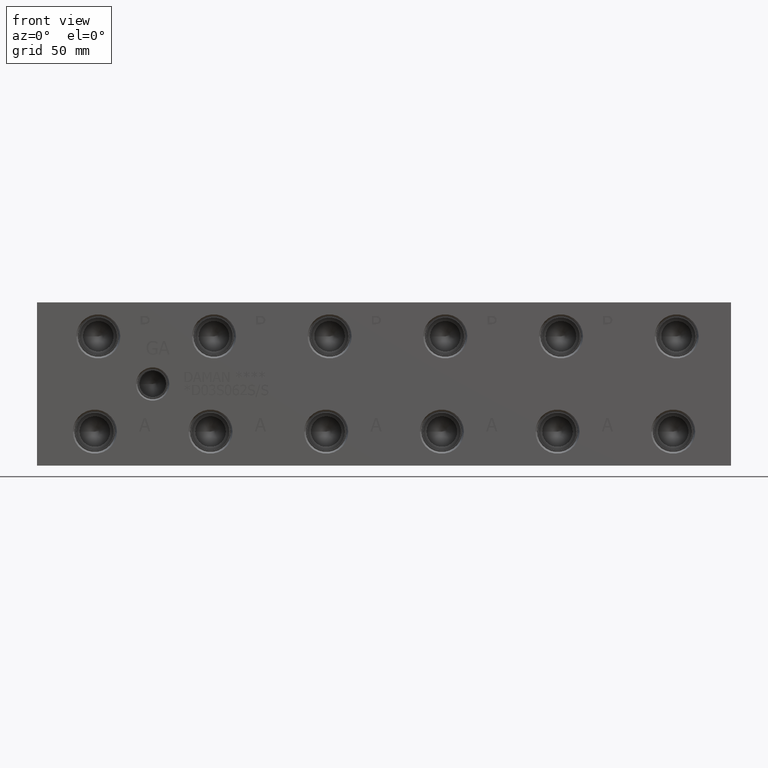
[diagram: clean part render]
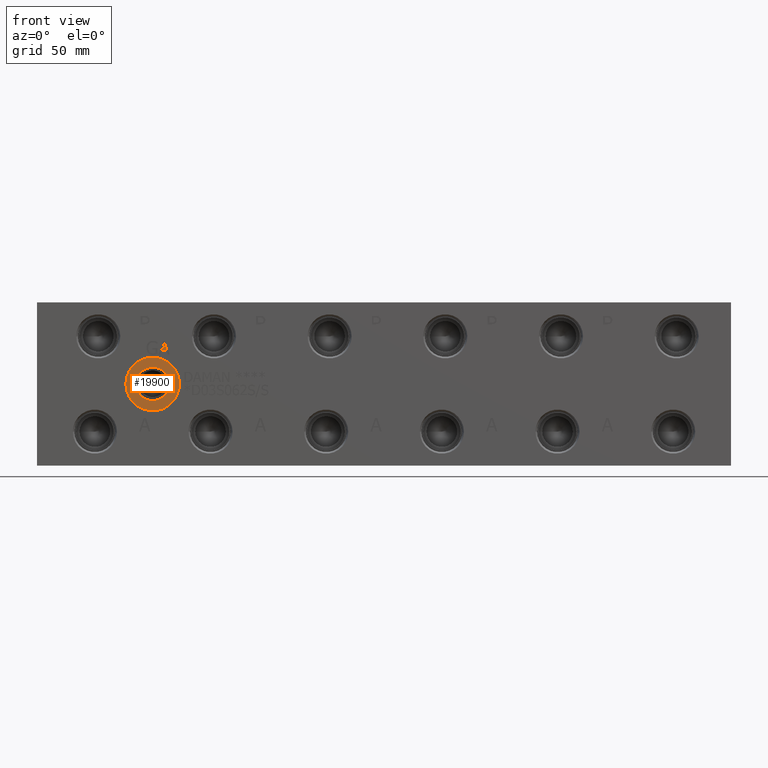
[diagram: same view with one face highlighted and labeled with its STEP entity id]
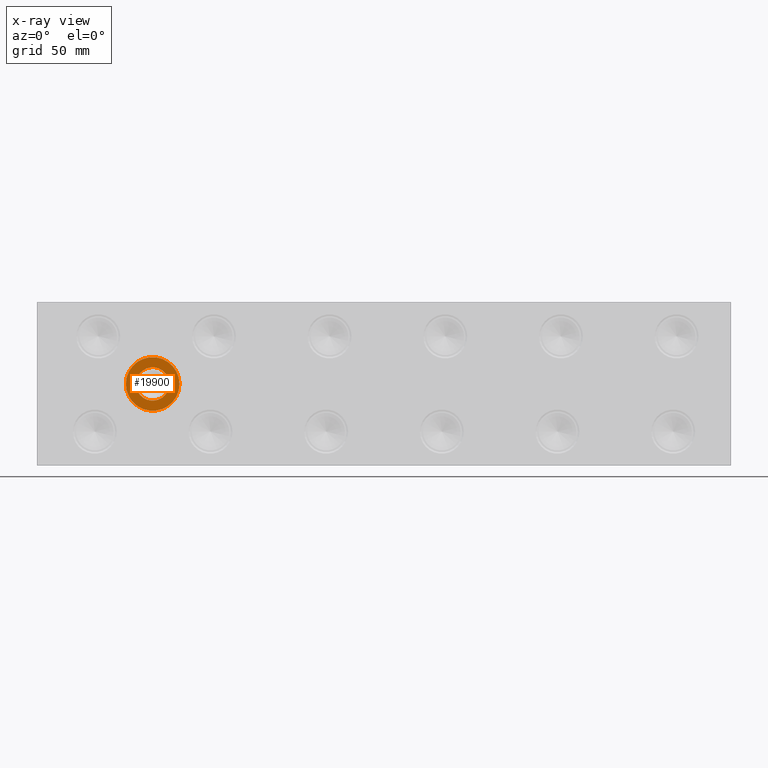
[diagram: x-ray of the same camera — body ghosted, the highlighted face saturated]
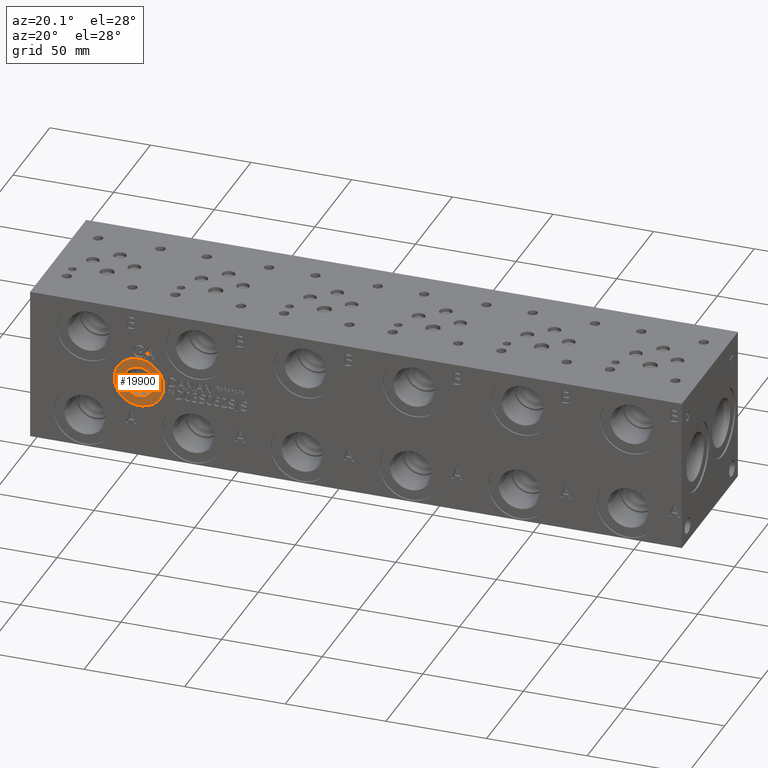
[diagram: same view with one face highlighted and labeled with its STEP entity id]
A machine part, front view. The second image highlights one B-rep face of the part: STEP entity #19900.
The next image is the same camera in x-ray: the body ghosted, the highlighted face saturated — about 0% of this face is hidden behind the body in this view.
A second angle (auxiliary view) of the same face is appended — the face is thin or edge-on in the first view.
In plain terms, the highlighted planar face has unit normal (0, 1, 0).
Its self-contained STEP definition (entity closure, byte-faithful):
#605=CIRCLE('',#20997,12.5095);
#606=CIRCLE('',#20998,12.5095);
#607=CIRCLE('',#21000,7.7978);
#608=CIRCLE('',#21001,7.7978);
#1108=FACE_BOUND('',#3686,.T.);
#1649=PLANE('',#20999);
#2515=FACE_OUTER_BOUND('',#3685,.T.);
#3685=EDGE_LOOP('',(#16981,#16982));
#3686=EDGE_LOOP('',(#16983,#16984));
#9304=VERTEX_POINT('',#34030);
#9305=VERTEX_POINT('',#34032);
#9306=VERTEX_POINT('',#34036);
#9307=VERTEX_POINT('',#34037);
#11984=EDGE_CURVE('',#9304,#9305,#605,.T.);
#11985=EDGE_CURVE('',#9305,#9304,#606,.T.);
#11986=EDGE_CURVE('',#9306,#9307,#607,.T.);
#11987=EDGE_CURVE('',#9307,#9306,#608,.T.);
#16981=ORIENTED_EDGE('',*,*,#11985,.F.);
#16982=ORIENTED_EDGE('',*,*,#11984,.F.);
#16983=ORIENTED_EDGE('',*,*,#11986,.T.);
#16984=ORIENTED_EDGE('',*,*,#11987,.T.);
#19900=ADVANCED_FACE('',(#2515,#1108),#1649,.F.);
#20997=AXIS2_PLACEMENT_3D('',#34033,#24770,#24771);
#20998=AXIS2_PLACEMENT_3D('',#34034,#24772,#24773);
#20999=AXIS2_PLACEMENT_3D('',#34035,#24774,#24775);
#21000=AXIS2_PLACEMENT_3D('',#34038,#24776,#24777);
#21001=AXIS2_PLACEMENT_3D('',#34039,#24778,#24779);
#24770=DIRECTION('center_axis',(0.,1.,0.));
#24771=DIRECTION('ref_axis',(1.,0.,0.));
#24772=DIRECTION('center_axis',(0.,1.,0.));
#24773=DIRECTION('ref_axis',(1.,0.,0.));
#24774=DIRECTION('center_axis',(0.,1.,0.));
#24775=DIRECTION('ref_axis',(0.,0.,1.));
#24776=DIRECTION('center_axis',(0.,1.,0.));
#24777=DIRECTION('ref_axis',(1.,0.,0.));
#24778=DIRECTION('center_axis',(0.,1.,0.));
#24779=DIRECTION('ref_axis',(1.,0.,0.));
#34030=CARTESIAN_POINT('',(41.4655,0.7874,38.1));
#34032=CARTESIAN_POINT('',(66.4845,0.7874,38.1));
#34033=CARTESIAN_POINT('Origin',(53.975,0.7874,38.1));
#34034=CARTESIAN_POINT('Origin',(53.975,0.7874,38.1));
#34035=CARTESIAN_POINT('Origin',(61.7728,0.7874,38.1));
#34036=CARTESIAN_POINT('',(61.7728,0.7874,38.1));
#34037=CARTESIAN_POINT('',(46.1772,0.787399999999999,38.1));
#34038=CARTESIAN_POINT('Origin',(53.975,0.7874,38.1));
#34039=CARTESIAN_POINT('Origin',(53.975,0.7874,38.1));